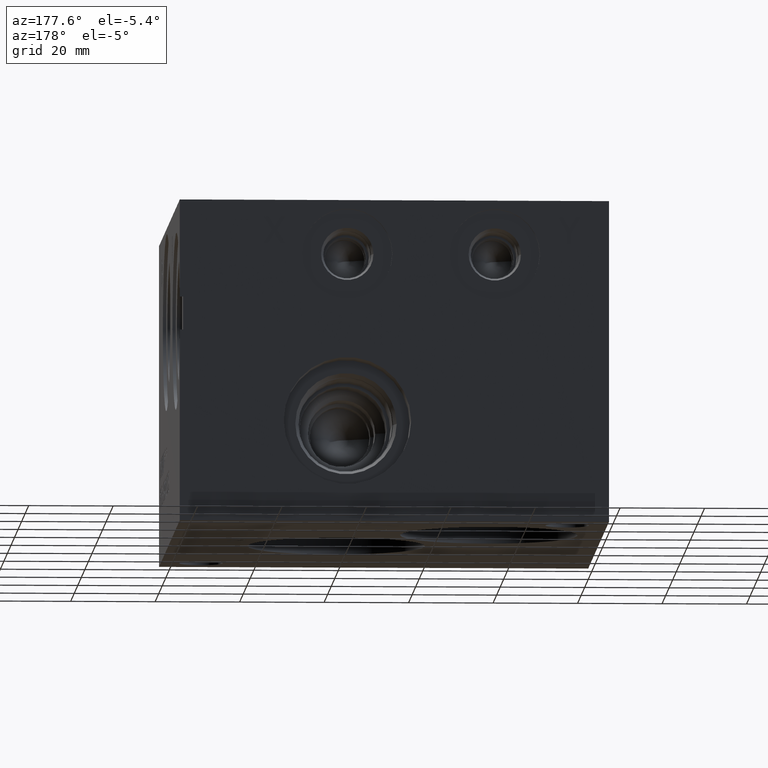
[diagram: clean part render]
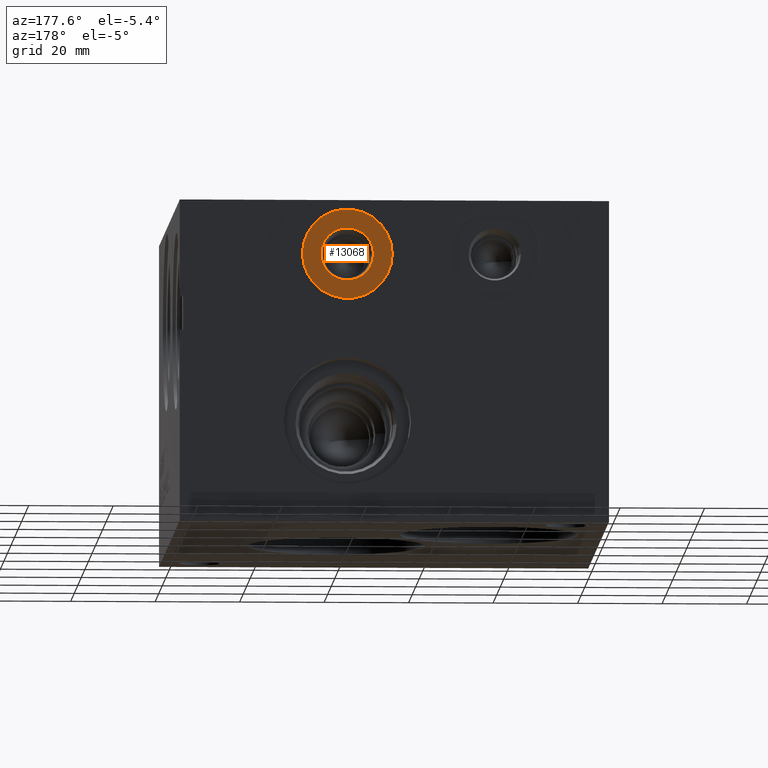
[diagram: same view with one face highlighted and labeled with its STEP entity id]
A machine part, auxiliary view. The second image highlights one B-rep face of the part: STEP entity #13068.
In plain terms, the highlighted planar face has unit normal (0, -1, 0).
Its self-contained STEP definition (entity closure, byte-faithful):
#393=CIRCLE('',#13852,10.6426);
#394=CIRCLE('',#13853,10.6426);
#395=CIRCLE('',#13855,6.1976);
#396=CIRCLE('',#13856,6.1976);
#499=FACE_BOUND('',#2307,.T.);
#905=PLANE('',#13854);
#1562=FACE_OUTER_BOUND('',#2306,.T.);
#2306=EDGE_LOOP('',(#11613,#11614));
#2307=EDGE_LOOP('',(#11615,#11616));
#6317=VERTEX_POINT('',#22257);
#6318=VERTEX_POINT('',#22259);
#6319=VERTEX_POINT('',#22263);
#6320=VERTEX_POINT('',#22264);
#8112=EDGE_CURVE('',#6317,#6318,#393,.T.);
#8113=EDGE_CURVE('',#6318,#6317,#394,.T.);
#8114=EDGE_CURVE('',#6319,#6320,#395,.T.);
#8115=EDGE_CURVE('',#6320,#6319,#396,.T.);
#11613=ORIENTED_EDGE('',*,*,#8113,.F.);
#11614=ORIENTED_EDGE('',*,*,#8112,.F.);
#11615=ORIENTED_EDGE('',*,*,#8114,.T.);
#11616=ORIENTED_EDGE('',*,*,#8115,.T.);
#13068=ADVANCED_FACE('',(#1562,#499),#905,.F.);
#13852=AXIS2_PLACEMENT_3D('',#22260,#16629,#16630);
#13853=AXIS2_PLACEMENT_3D('',#22261,#16631,#16632);
#13854=AXIS2_PLACEMENT_3D('',#22262,#16633,#16634);
#13855=AXIS2_PLACEMENT_3D('',#22265,#16635,#16636);
#13856=AXIS2_PLACEMENT_3D('',#22266,#16637,#16638);
#16629=DIRECTION('center_axis',(0.,-1.,0.));
#16630=DIRECTION('ref_axis',(1.,0.,0.));
#16631=DIRECTION('center_axis',(0.,-1.,0.));
#16632=DIRECTION('ref_axis',(1.,0.,0.));
#16633=DIRECTION('center_axis',(0.,-1.,0.));
#16634=DIRECTION('ref_axis',(0.,0.,-1.));
#16635=DIRECTION('center_axis',(0.,-1.,0.));
#16636=DIRECTION('ref_axis',(1.,0.,0.));
#16637=DIRECTION('center_axis',(0.,-1.,0.));
#16638=DIRECTION('ref_axis',(1.,0.,0.));
#22257=CARTESIAN_POINT('',(51.2826,116.6876,63.5));
#22259=CARTESIAN_POINT('',(72.5678,116.6876,63.5));
#22260=CARTESIAN_POINT('Origin',(61.9252,116.6876,63.5));
#22261=CARTESIAN_POINT('Origin',(61.9252,116.6876,63.5));
#22262=CARTESIAN_POINT('Origin',(68.1228,116.6876,63.5));
#22263=CARTESIAN_POINT('',(68.1228,116.6876,63.5));
#22264=CARTESIAN_POINT('',(55.7276,116.6876,63.5));
#22265=CARTESIAN_POINT('Origin',(61.9252,116.6876,63.5));
#22266=CARTESIAN_POINT('Origin',(61.9252,116.6876,63.5));